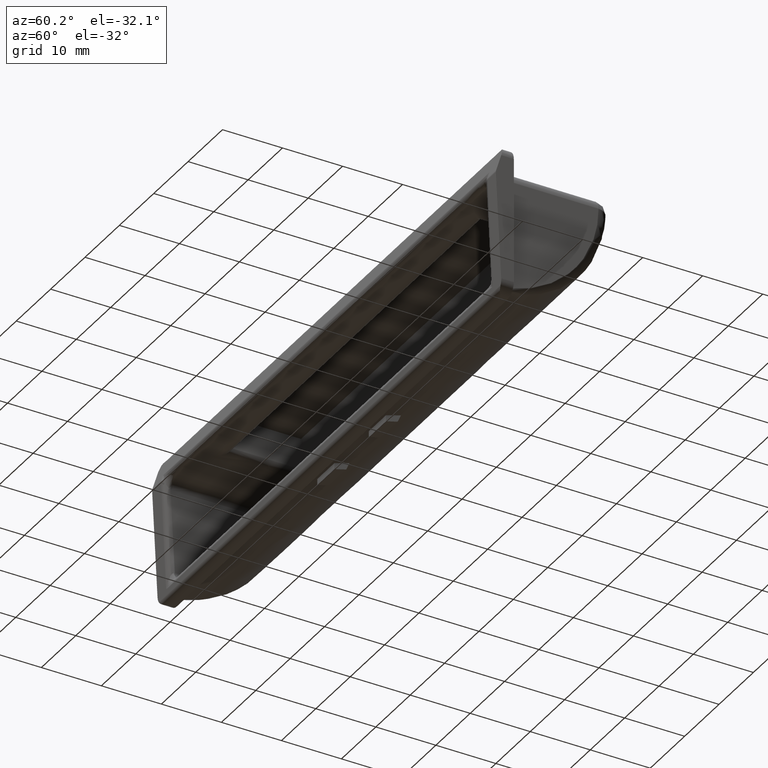
[diagram: clean part render]
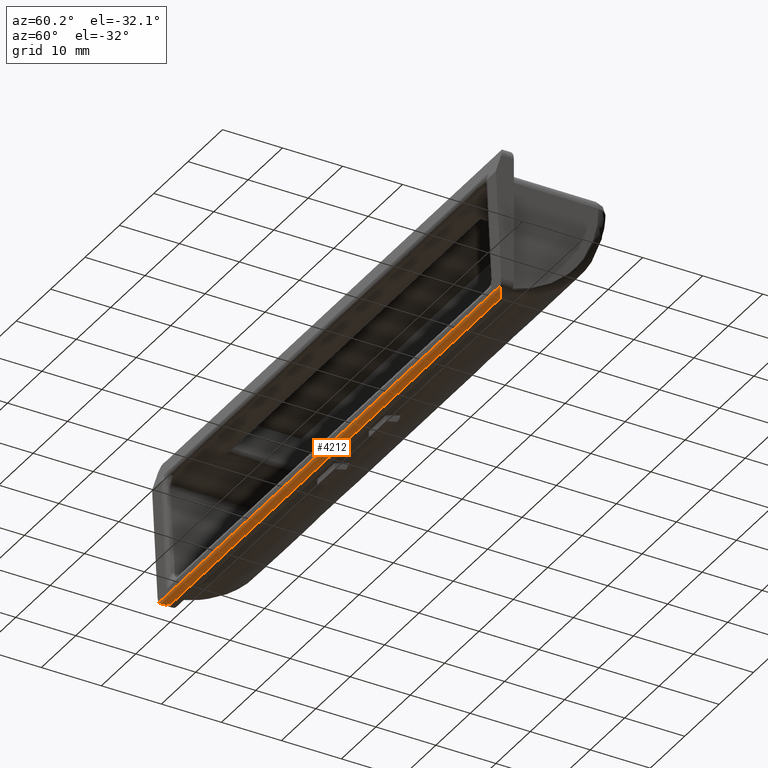
[diagram: same view with one face highlighted and labeled with its STEP entity id]
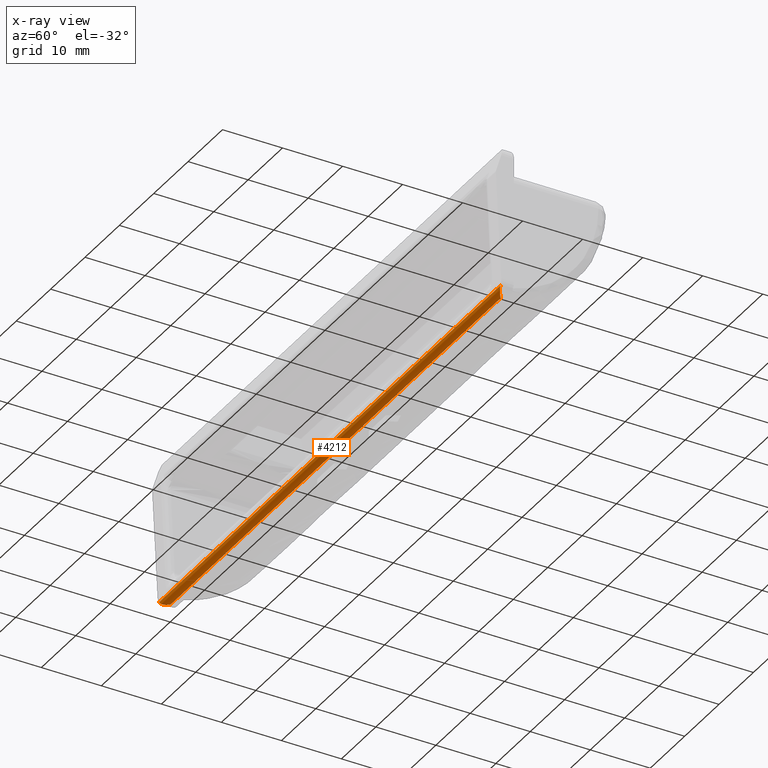
[diagram: x-ray of the same camera — body ghosted, the highlighted face saturated]
A machine part, auxiliary view. The second image highlights one B-rep face of the part: STEP entity #4212.
The next image is the same camera in x-ray: the body ghosted, the highlighted face saturated — about 0% of this face is hidden behind the body in this view.
In plain terms, the highlighted face is a freeform B-spline surface patch.
Its self-contained STEP definition (entity closure, byte-faithful):
#1134=CARTESIAN_POINT('',(-49.702242927450001,-2.047502968760576,-11.299937624788500));
#1135=VERTEX_POINT('',#1134);
#1149=CARTESIAN_POINT('',(49.702242927450001,-2.047502968760576,-11.299937624788500));
#1150=VERTEX_POINT('',#1149);
#1151=CARTESIAN_POINT('',(-49.702242927450001,-2.047502968760576,-11.299937624788500));
#1152=CARTESIAN_POINT('',(49.702242927450001,-2.047502968760576,-11.299937624788500));
#1153=QUASI_UNIFORM_CURVE('',1,(#1151,#1152),.UNSPECIFIED.,.F.,.U.);
#1154=EDGE_CURVE('',#1135,#1150,#1153,.T.);
#4132=CARTESIAN_POINT('',(52.187355073822502,-2.048467935901280,-11.273776224074799));
#4133=CARTESIAN_POINT('',(-52.249482877481810,-2.048467935901280,-11.273776224074799));
#4134=CARTESIAN_POINT('',(52.187355073822502,-2.023846935124351,-12.309013799271883));
#4135=CARTESIAN_POINT('',(-52.249482877481796,-2.023846935124351,-12.309013799271883));
#4136=CARTESIAN_POINT('',(52.187355073822502,-0.990099259222321,-12.248278526601490));
#4137=CARTESIAN_POINT('',(-52.249482877481810,-0.990099259222321,-12.248278526601490));
#4145=(BOUNDED_SURFACE()B_SPLINE_SURFACE(1,2,((#4132,#4134,#4136),(#4133,#4135,#4137)),.UNSPECIFIED.,.F.,.F.,.U.)B_SPLINE_SURFACE_WITH_KNOTS((2,2),(3,3),(0.0,104.436837951304300),(0.0,1.0),.UNSPECIFIED.)GEOMETRIC_REPRESENTATION_ITEM()RATIONAL_B_SPLINE_SURFACE(((1.0,0.694658370458997,1.0),(1.0,0.694658370458997,1.0)))REPRESENTATION_ITEM('')SURFACE());
#4146=CARTESIAN_POINT('',(48.0,-1.048750630274962,-12.250000000000000));
#4147=VERTEX_POINT('',#4146);
#4148=CARTESIAN_POINT('',(49.702242927450001,-2.047502968760576,-11.299937624788500));
#4149=CARTESIAN_POINT('',(49.651265871613980,-2.043370563921667,-11.382585708551160));
#4150=CARTESIAN_POINT('',(49.595829493445741,-2.029467904545462,-11.459121872405380));
#4151=CARTESIAN_POINT('',(49.506518798263428,-1.998149791133759,-11.566268581672810));
#4152=CARTESIAN_POINT('',(49.475716820113142,-1.985930606778267,-11.600694051261550));
#4153=CARTESIAN_POINT('',(49.412079537564317,-1.958326360488545,-11.667090657957480));
#4154=CARTESIAN_POINT('',(49.379085461009460,-1.942855731460729,-11.699193777150430));
#4155=CARTESIAN_POINT('',(49.278861603931531,-1.893037646306233,-11.790347443918581));
#4156=CARTESIAN_POINT('',(49.210066854404417,-1.855228746944006,-11.844722358921331));
#4157=CARTESIAN_POINT('',(49.068656263425247,-1.772774359421019,-11.942741854156679));
#4158=CARTESIAN_POINT('',(48.996017324952597,-1.728088459966167,-11.986376084659060));
#4159=CARTESIAN_POINT('',(48.846949407020141,-1.633167082713823,-12.063761042951890));
#4160=CARTESIAN_POINT('',(48.771958803779100,-1.583848391273059,-12.096774601854159));
#4161=CARTESIAN_POINT('',(48.620841251705819,-1.482474942659386,-12.152906451974451));
#4162=CARTESIAN_POINT('',(48.544716211804811,-1.430411902696523,-12.176012458911440));
#4163=CARTESIAN_POINT('',(48.391116708322308,-1.324150724308479,-12.212974137312100));
#4164=CARTESIAN_POINT('',(48.313643761257850,-1.269948630294139,-12.226825940524931));
#4165=CARTESIAN_POINT('',(48.196229509691221,-1.187361081953645,-12.240740385272129));
#4166=CARTESIAN_POINT('',(48.156969614721341,-1.159672608501662,-12.244218017330260));
#4167=CARTESIAN_POINT('',(48.098112875458092,-1.118108865726784,-12.247688690416240));
#4168=CARTESIAN_POINT('',(48.078487423598951,-1.104240601105220,-12.248555867810291));
#4169=CARTESIAN_POINT('',(48.039219201383283,-1.076482798745222,-12.249711900915980));
#4170=CARTESIAN_POINT('',(48.019446860913021,-1.062501614580689,-12.250000000000000));
#4171=CARTESIAN_POINT('',(48.0,-1.048750630274962,-12.250000000000000));
#4172=B_SPLINE_CURVE_WITH_KNOTS('',3,(#4148,#4149,#4150,#4151,#4152,#4153,#4154,#4155,#4156,#4157,#4158,#4159,#4160,#4161,#4162,#4163,#4164,#4165,#4166,#4167,#4168,#4169,#4170,#4171),.UNSPECIFIED.,.F.,.U.,(4,2,2,2,2,2,2,2,2,2,2,4),(0.0,0.124999999999997,0.187499999999997,0.249999999999997,0.374999999999997,0.499999999999996,0.624999999999995,0.749999999999994,0.874999999999994,0.937499999999993,0.968749999999997,1.0),.UNSPECIFIED.);
#4173=EDGE_CURVE('',#1150,#4147,#4172,.T.);
#4174=ORIENTED_EDGE('',*,*,#4173,.F.);
#4175=ORIENTED_EDGE('',*,*,#1154,.F.);
#4176=CARTESIAN_POINT('',(-48.0,-1.048750630274962,-12.250000000000000));
#4177=VERTEX_POINT('',#4176);
#4178=CARTESIAN_POINT('',(-48.0,-1.048750630274962,-12.250000000000000));
#4179=CARTESIAN_POINT('',(-48.019446860913021,-1.062501614580689,-12.250000000000000));
#4180=CARTESIAN_POINT('',(-48.039219201383283,-1.076482798745222,-12.249711900915980));
#4181=CARTESIAN_POINT('',(-48.078487423598951,-1.104240601105220,-12.248555867810291));
#4182=CARTESIAN_POINT('',(-48.098112875458092,-1.118108865726784,-12.247688690416240));
#4183=CARTESIAN_POINT('',(-48.156969614721341,-1.159672608501662,-12.244218017330260));
#4184=CARTESIAN_POINT('',(-48.196229509691221,-1.187361081953645,-12.240740385272129));
#4185=CARTESIAN_POINT('',(-48.313643761257850,-1.269948630294139,-12.226825940524931));
#4186=CARTESIAN_POINT('',(-48.391116708322308,-1.324150724308479,-12.212974137312100));
#4187=CARTESIAN_POINT('',(-48.544716211804811,-1.430411902696523,-12.176012458911440));
#4188=CARTESIAN_POINT('',(-48.620841251705819,-1.482474942659386,-12.152906451974451));
#4189=CARTESIAN_POINT('',(-48.771958803779100,-1.583848391273059,-12.096774601854159));
#4190=CARTESIAN_POINT('',(-48.846949407020141,-1.633167082713823,-12.063761042951890));
#4191=CARTESIAN_POINT('',(-48.996017324952597,-1.728088459966167,-11.986376084659060));
#4192=CARTESIAN_POINT('',(-49.068656263425247,-1.772774359421019,-11.942741854156679));
#4193=CARTESIAN_POINT('',(-49.210066854404417,-1.855228746944006,-11.844722358921331));
#4194=CARTESIAN_POINT('',(-49.278861603931531,-1.893037646306233,-11.790347443918581));
#4195=CARTESIAN_POINT('',(-49.379085461009460,-1.942855731460729,-11.699193777150430));
#4196=CARTESIAN_POINT('',(-49.412079537564317,-1.958326360488545,-11.667090657957480));
#4197=CARTESIAN_POINT('',(-49.475716820113142,-1.985930606778267,-11.600694051261550));
#4198=CARTESIAN_POINT('',(-49.506518798263428,-1.998149791133759,-11.566268581672810));
#4199=CARTESIAN_POINT('',(-49.595829493445741,-2.029467904545462,-11.459121872405380));
#4200=CARTESIAN_POINT('',(-49.651265871613980,-2.043370563921667,-11.382585708551160));
#4201=CARTESIAN_POINT('',(-49.702242927450001,-2.047502968760576,-11.299937624788500));
#4202=B_SPLINE_CURVE_WITH_KNOTS('',3,(#4178,#4179,#4180,#4181,#4182,#4183,#4184,#4185,#4186,#4187,#4188,#4189,#4190,#4191,#4192,#4193,#4194,#4195,#4196,#4197,#4198,#4199,#4200,#4201),.UNSPECIFIED.,.F.,.U.,(4,2,2,2,2,2,2,2,2,2,2,4),(0.0,0.031250000000003,0.062500000000007,0.125000000000006,0.250000000000006,0.375000000000005,0.500000000000004,0.625000000000003,0.750000000000003,0.812500000000003,0.875000000000003,1.0),.UNSPECIFIED.);
#4203=EDGE_CURVE('',#4177,#1135,#4202,.T.);
#4204=ORIENTED_EDGE('',*,*,#4203,.F.);
#4205=CARTESIAN_POINT('',(48.0,-1.048750630274962,-12.250000000000000));
#4206=CARTESIAN_POINT('',(-48.0,-1.048750630274962,-12.250000000000000));
#4207=QUASI_UNIFORM_CURVE('',1,(#4205,#4206),.UNSPECIFIED.,.F.,.U.);
#4208=EDGE_CURVE('',#4147,#4177,#4207,.T.);
#4209=ORIENTED_EDGE('',*,*,#4208,.F.);
#4210=EDGE_LOOP('',(#4174,#4175,#4204,#4209));
#4211=FACE_OUTER_BOUND('',#4210,.T.);
#4212=ADVANCED_FACE('',(#4211),#4145,.T.);